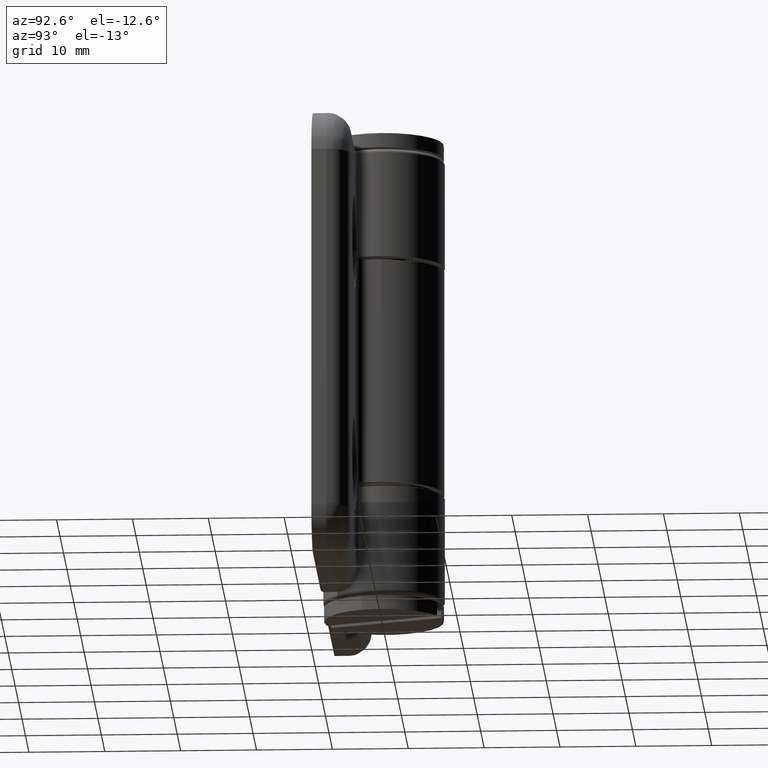
[diagram: clean part render]
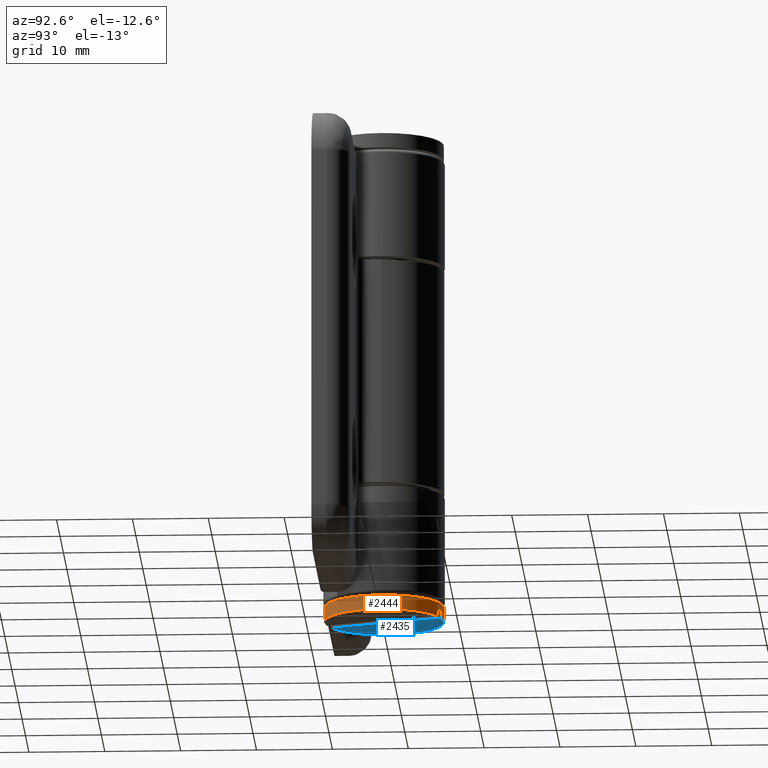
[diagram: same view with the hole feature highlighted: cylindrical wall and planar end face, labeled with their STEP entity ids]
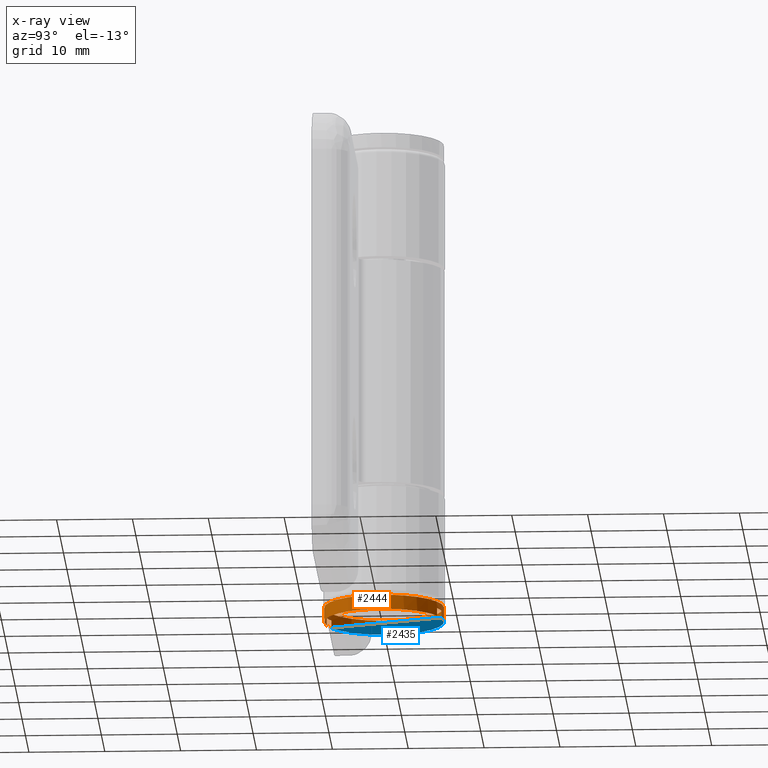
[diagram: x-ray of the same camera — body ghosted, the hole faces saturated]
A machine part, auxiliary view. The highlighted faces form one hole feature of diameter 15.8 mm: the cylindrical wall (entity #2444, orange) and its adjacent planar end face (entity #2435, blue) — they share a circular edge in the B-rep.
The next image is the same camera in x-ray (body ghosted, the hole faces saturated) — the bore reads through the body.
Wall:
#115=LINE('',#3692,#289);
#117=LINE('',#3696,#291);
#119=LINE('',#3701,#293);
#121=LINE('',#3705,#295);
#289=VECTOR('',#2936,1.);
#291=VECTOR('',#2938,1.);
#293=VECTOR('',#2942,1.);
#295=VECTOR('',#2944,1.);
#502=FACE_BOUND('',#788,.T.);
#558=CYLINDRICAL_SURFACE('',#2634,7.9);
#613=FACE_OUTER_BOUND('',#787,.T.);
#787=EDGE_LOOP('',(#1717,#1718,#1719,#1720,#1721,#1722,#1723,#1724));
#788=EDGE_LOOP('',(#1725));
#981=CIRCLE('',#2614,7.9);
#982=CIRCLE('',#2615,7.9);
#983=CIRCLE('',#2617,7.9);
#984=CIRCLE('',#2619,7.9);
#991=CIRCLE('',#2633,7.9);
#1110=VERTEX_POINT('',#3690);
#1111=VERTEX_POINT('',#3691);
#1112=VERTEX_POINT('',#3693);
#1113=VERTEX_POINT('',#3695);
#1114=VERTEX_POINT('',#3699);
#1115=VERTEX_POINT('',#3700);
#1116=VERTEX_POINT('',#3702);
#1117=VERTEX_POINT('',#3704);
#1124=VERTEX_POINT('',#3733);
#1343=EDGE_CURVE('',#1110,#1111,#115,.T.);
#1345=EDGE_CURVE('',#1113,#1112,#117,.T.);
#1347=EDGE_CURVE('',#1114,#1115,#119,.T.);
#1349=EDGE_CURVE('',#1117,#1116,#121,.T.);
#1351=EDGE_CURVE('',#1115,#1110,#981,.T.);
#1352=EDGE_CURVE('',#1112,#1117,#982,.T.);
#1353=EDGE_CURVE('',#1114,#1116,#983,.T.);
#1354=EDGE_CURVE('',#1113,#1111,#984,.T.);
#1361=EDGE_CURVE('',#1124,#1124,#991,.T.);
#1717=ORIENTED_EDGE('',*,*,#1343,.T.);
#1718=ORIENTED_EDGE('',*,*,#1354,.F.);
#1719=ORIENTED_EDGE('',*,*,#1345,.T.);
#1720=ORIENTED_EDGE('',*,*,#1352,.T.);
#1721=ORIENTED_EDGE('',*,*,#1349,.T.);
#1722=ORIENTED_EDGE('',*,*,#1353,.F.);
#1723=ORIENTED_EDGE('',*,*,#1347,.T.);
#1724=ORIENTED_EDGE('',*,*,#1351,.T.);
#1725=ORIENTED_EDGE('',*,*,#1361,.T.);
#2444=ADVANCED_FACE('',(#613,#502),#558,.T.);
#2614=AXIS2_PLACEMENT_3D('',#3708,#2948,#2949);
#2615=AXIS2_PLACEMENT_3D('',#3709,#2950,#2951);
#2617=AXIS2_PLACEMENT_3D('',#3711,#2954,#2955);
#2619=AXIS2_PLACEMENT_3D('',#3713,#2958,#2959);
#2633=AXIS2_PLACEMENT_3D('',#3734,#2986,#2987);
#2634=AXIS2_PLACEMENT_3D('',#3735,#2988,#2989);
#2936=DIRECTION('',(0.,-1.,0.));
#2938=DIRECTION('',(0.,1.,0.));
#2942=DIRECTION('',(0.,1.,0.));
#2944=DIRECTION('',(0.,-1.,0.));
#2948=DIRECTION('center_axis',(0.,1.,0.));
#2949=DIRECTION('ref_axis',(1.,0.,0.));
#2950=DIRECTION('center_axis',(0.,1.,0.));
#2951=DIRECTION('ref_axis',(1.,0.,0.));
#2954=DIRECTION('center_axis',(0.,-1.,0.));
#2955=DIRECTION('ref_axis',(1.,0.,0.));
#2958=DIRECTION('center_axis',(0.,-1.,0.));
#2959=DIRECTION('ref_axis',(1.,0.,0.));
#2986=DIRECTION('center_axis',(0.,-1.,0.));
#2987=DIRECTION('ref_axis',(1.,0.,0.));
#2988=DIRECTION('center_axis',(0.,-1.,0.));
#2989=DIRECTION('ref_axis',(1.,0.,0.));
#3690=CARTESIAN_POINT('',(0.75,1.,7.86431815226215));
#3691=CARTESIAN_POINT('',(0.75,0.,7.86431815226215));
#3692=CARTESIAN_POINT('',(0.75,0.950000000000006,7.86431815226215));
#3693=CARTESIAN_POINT('',(0.75,1.,-7.86431815226215));
#3695=CARTESIAN_POINT('',(0.75,0.,-7.86431815226215));
#3696=CARTESIAN_POINT('',(0.75,0.950000000000006,-7.86431815226215));
#3699=CARTESIAN_POINT('',(-0.75,0.,7.86431815226215));
#3700=CARTESIAN_POINT('',(-0.75,1.,7.86431815226215));
#3701=CARTESIAN_POINT('',(-0.75,0.950000000000006,7.86431815226215));
#3702=CARTESIAN_POINT('',(-0.75,0.,-7.86431815226215));
#3704=CARTESIAN_POINT('',(-0.75,1.,-7.86431815226215));
#3705=CARTESIAN_POINT('',(-0.75,0.950000000000006,-7.86431815226215));
#3708=CARTESIAN_POINT('Origin',(0.,1.,0.));
#3709=CARTESIAN_POINT('Origin',(0.,1.,0.));
#3711=CARTESIAN_POINT('Origin',(0.,4.44089209850063E-15,0.));
#3713=CARTESIAN_POINT('Origin',(0.,4.44089209850063E-15,0.));
#3733=CARTESIAN_POINT('',(7.9,1.90000000000001,0.));
#3734=CARTESIAN_POINT('Origin',(0.,1.90000000000001,0.));
#3735=CARTESIAN_POINT('Origin',(0.,0.950000000000006,0.));
End face:
#120=LINE('',#3703,#294);
#294=VECTOR('',#2943,15.7286363045243);
#604=FACE_OUTER_BOUND('',#772,.T.);
#772=EDGE_LOOP('',(#1700,#1701));
#983=CIRCLE('',#2617,7.9);
#1114=VERTEX_POINT('',#3699);
#1116=VERTEX_POINT('',#3702);
#1348=EDGE_CURVE('',#1116,#1114,#120,.T.);
#1353=EDGE_CURVE('',#1114,#1116,#983,.T.);
#1700=ORIENTED_EDGE('',*,*,#1348,.T.);
#1701=ORIENTED_EDGE('',*,*,#1353,.T.);
#2347=PLANE('',#2616);
#2435=ADVANCED_FACE('',(#604),#2347,.T.);
#2616=AXIS2_PLACEMENT_3D('',#3710,#2952,#2953);
#2617=AXIS2_PLACEMENT_3D('',#3711,#2954,#2955);
#2943=DIRECTION('',(0.,0.,1.));
#2952=DIRECTION('center_axis',(0.,-1.,0.));
#2953=DIRECTION('ref_axis',(0.,0.,-1.));
#2954=DIRECTION('center_axis',(0.,-1.,0.));
#2955=DIRECTION('ref_axis',(1.,0.,0.));
#3699=CARTESIAN_POINT('',(-0.75,0.,7.86431815226215));
#3702=CARTESIAN_POINT('',(-0.75,0.,-7.86431815226215));
#3703=CARTESIAN_POINT('',(-0.75,-9.86076131526265E-31,-4.68128831206632));
#3710=CARTESIAN_POINT('Origin',(0.,-9.86076131526265E-31,0.));
#3711=CARTESIAN_POINT('Origin',(0.,4.44089209850063E-15,0.));